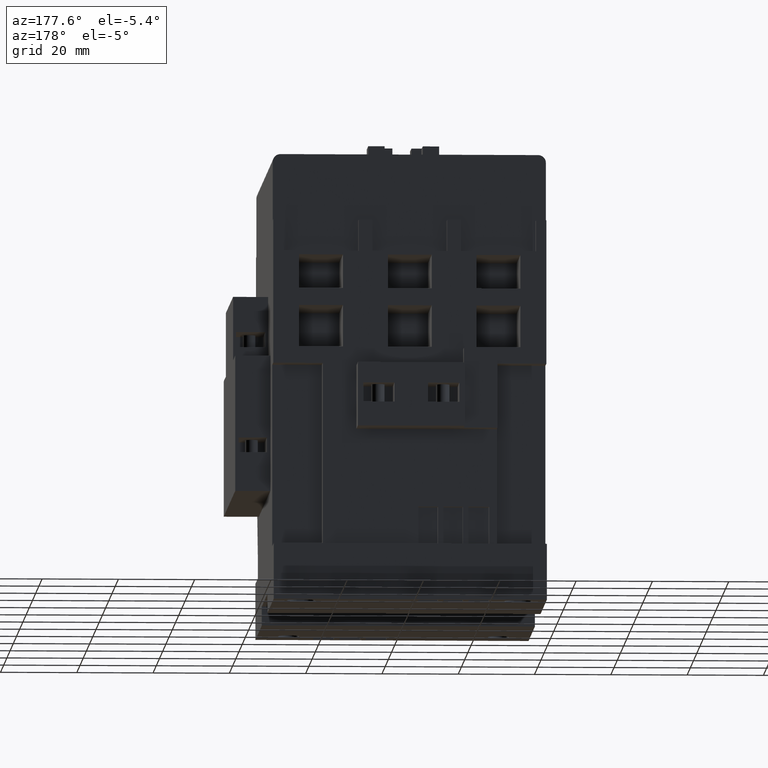
[diagram: clean part render]
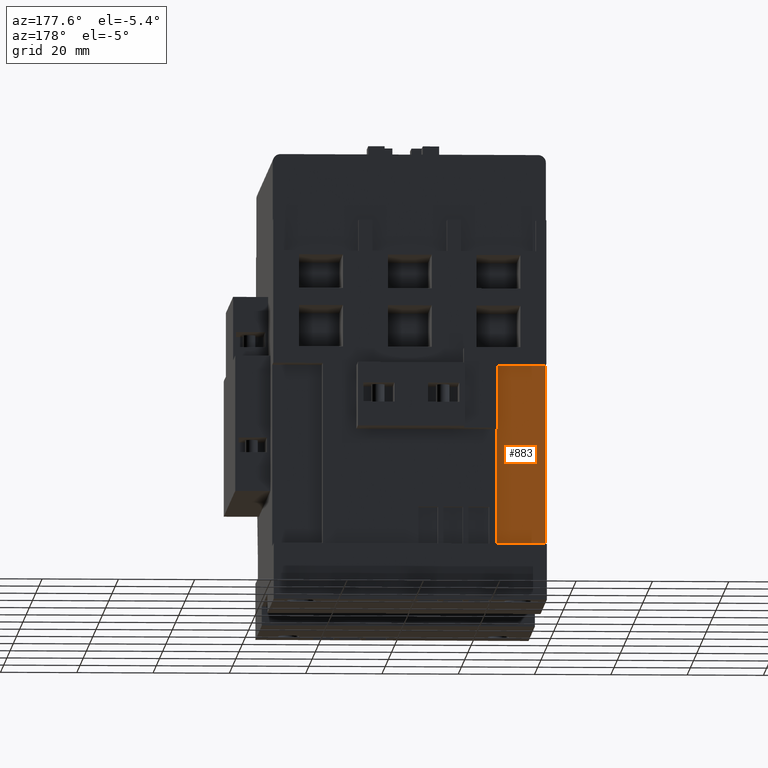
[diagram: same view with one face highlighted and labeled with its STEP entity id]
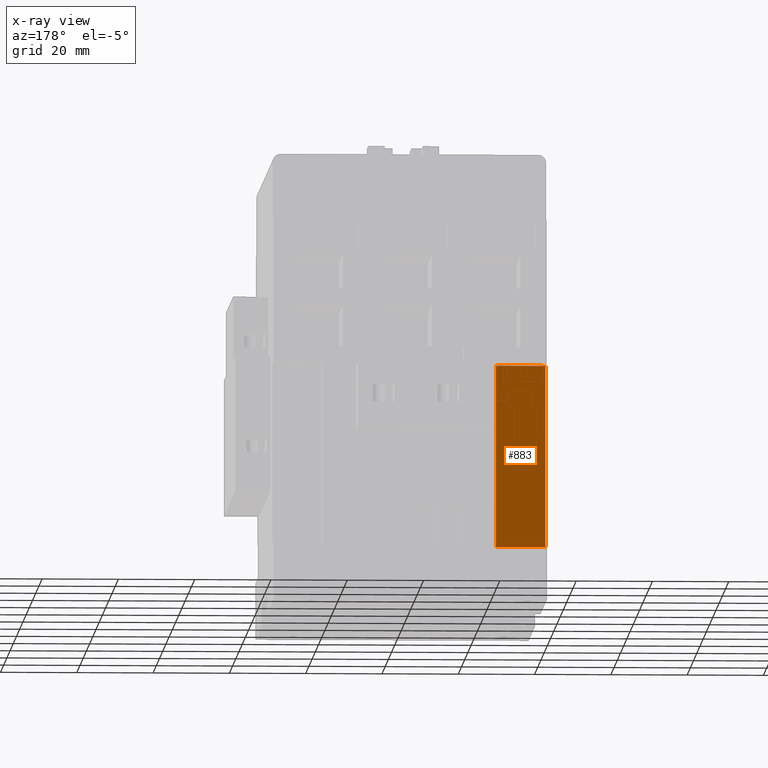
[diagram: x-ray of the same camera — body ghosted, the highlighted face saturated]
A machine part, auxiliary view. The second image highlights one B-rep face of the part: STEP entity #883.
The next image is the same camera in x-ray: the body ghosted, the highlighted face saturated — about 0% of this face is hidden behind the body in this view.
In plain terms, the highlighted planar face has unit normal (-0, 1, -0).
Its self-contained STEP definition (entity closure, byte-faithful):
#463=FACE_OUTER_BOUND('',#1991,.T.);
#883=ADVANCED_FACE('',(#463),#1322,.T.);
#1322=PLANE('',#8917);
#1991=EDGE_LOOP('',(#3668,#3669,#3670,#3671));
#3668=ORIENTED_EDGE('',*,*,#5490,.T.);
#3669=ORIENTED_EDGE('',*,*,#6134,.T.);
#3670=ORIENTED_EDGE('',*,*,#6137,.T.);
#3671=ORIENTED_EDGE('',*,*,#5558,.T.);
#4689=VERTEX_POINT('',#11652);
#4690=VERTEX_POINT('',#11654);
#4752=VERTEX_POINT('',#11786);
#5123=VERTEX_POINT('',#12970);
#5490=EDGE_CURVE('',#4690,#4689,#6647,.T.);
#5558=EDGE_CURVE('',#4752,#4690,#6713,.T.);
#6134=EDGE_CURVE('',#4689,#5123,#7239,.T.);
#6137=EDGE_CURVE('',#5123,#4752,#7242,.T.);
#6647=LINE('',#11653,#7700);
#6713=LINE('',#11785,#7766);
#7239=LINE('',#12971,#8292);
#7242=LINE('',#12976,#8295);
#7700=VECTOR('',#9351,1.);
#7766=VECTOR('',#9425,1.);
#8292=VECTOR('',#10527,1.);
#8295=VECTOR('',#10532,1.);
#8917=AXIS2_PLACEMENT_3D('',#12978,#10535,#10536);
#9351=DIRECTION('',(0.,1.45469473876462E-016,1.));
#9425=DIRECTION('',(-1.,0.,0.));
#10527=DIRECTION('',(1.,0.,-5.33761069531325E-016));
#10532=DIRECTION('',(-2.18204210814693E-016,0.,-1.));
#10535=DIRECTION('',(-7.76459419604594E-032,1.,-1.45469473876462E-016));
#10536=DIRECTION('',(0.,1.45716771982052E-016,1.));
#11652=CARTESIAN_POINT('',(-35.8,47.9,57.4000000000094));
#11653=CARTESIAN_POINT('',(-35.8,47.9,9.70000000000936));
#11654=CARTESIAN_POINT('',(-35.8,47.9,9.70000000000936));
#11785=CARTESIAN_POINT('',(-22.8,47.9,9.70000000000936));
#11786=CARTESIAN_POINT('',(-22.8,47.9,9.70000000000937));
#12970=CARTESIAN_POINT('',(-22.8,47.9,57.4000000000094));
#12971=CARTESIAN_POINT('',(-35.8,47.9,57.4000000000094));
#12976=CARTESIAN_POINT('',(-22.8,47.9,57.4000000000094));
#12978=CARTESIAN_POINT('',(-35.8,47.9,57.4000000000094));